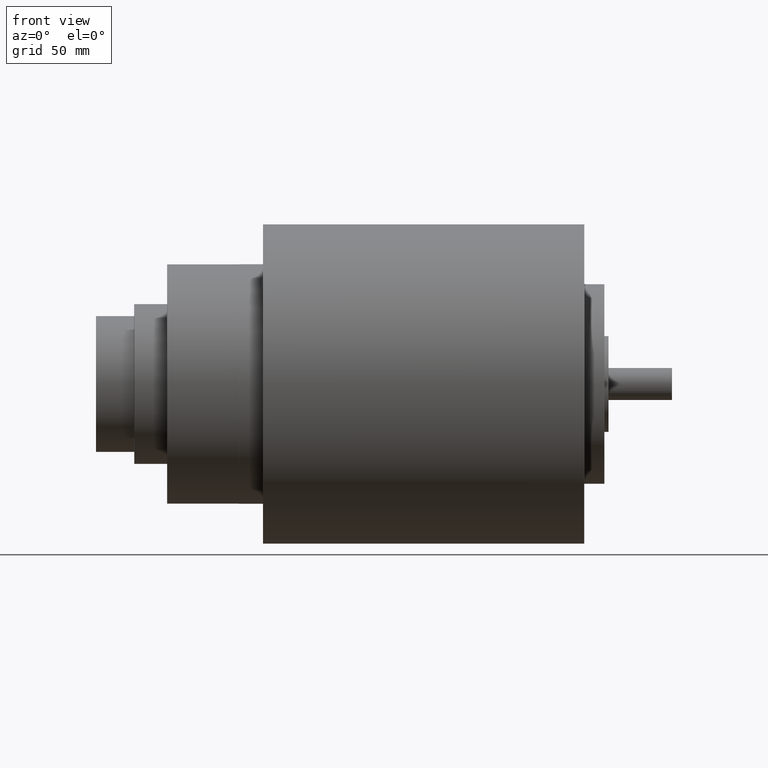
[diagram: clean part render]
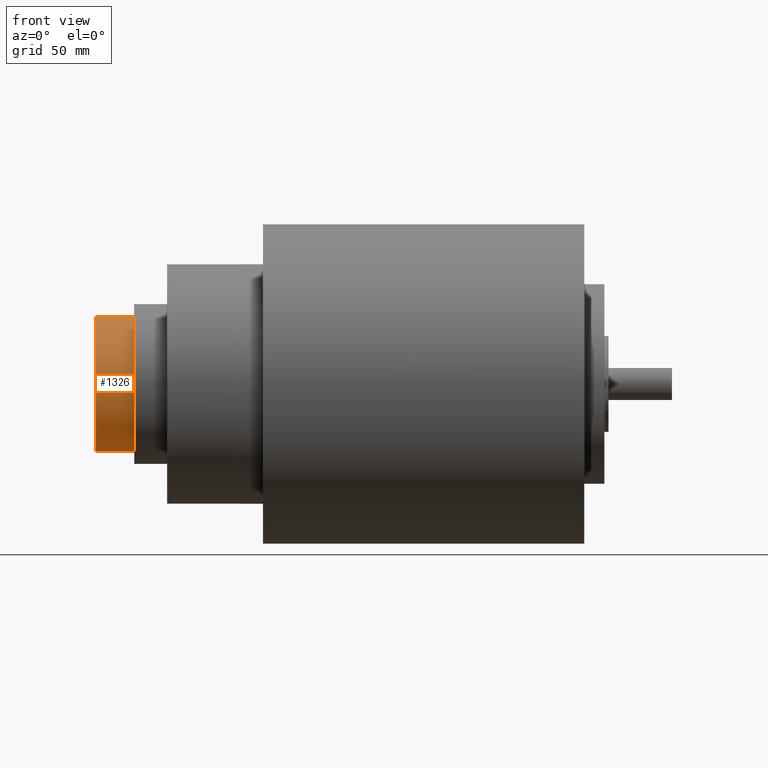
[diagram: same view with one face highlighted and labeled with its STEP entity id]
A machine part, front view. The second image highlights one B-rep face of the part: STEP entity #1326.
In plain terms, the highlighted cylindrical surface (partial cylindrical patch) has radius 53.975 mm, axis along (-1, -0, -0).
Its self-contained STEP definition (entity closure, byte-faithful):
#191 = FACE_OUTER_BOUND ( 'NONE', #560, .T. ) ;
#196 = CYLINDRICAL_SURFACE ( 'NONE', #2635, 2.125000000000000000 ) ;
#560 = EDGE_LOOP ( 'NONE', ( #1469, #1470, #1471, #1472 ) ) ;
#621 = VERTEX_POINT ( 'NONE', #737 ) ;
#622 = VERTEX_POINT ( 'NONE', #741 ) ;
#655 = VERTEX_POINT ( 'NONE', #773 ) ;
#656 = VERTEX_POINT ( 'NONE', #774 ) ;
#737 = CARTESIAN_POINT ( 'NONE',  ( 1.196000000000000200, 2.602374448188124900E-016, -2.125000000000000000 ) ) ;
#741 = CARTESIAN_POINT ( 'NONE',  ( 1.196000000000000200, 0.0000000000000000000, 2.125000000000000000 ) ) ;
#773 = CARTESIAN_POINT ( 'NONE',  ( 0.004999999999999946300, 0.0000000000000000000, 2.125000000000000000 ) ) ;
#774 = CARTESIAN_POINT ( 'NONE',  ( 0.004999999999999946300, 2.602374448188124900E-016, -2.125000000000000000 ) ) ;
#971 = CARTESIAN_POINT ( 'NONE',  ( 0.004999999999999946300, 0.0000000000000000000, 0.0000000000000000000 ) ) ;
#972 = DIRECTION ( 'NONE',  ( 1.000000000000000000, 0.0000000000000000000, 0.0000000000000000000 ) ) ;
#973 = DIRECTION ( 'NONE',  ( 0.0000000000000000000, 0.0000000000000000000, -1.000000000000000000 ) ) ;
#1024 = EDGE_CURVE ( 'NONE', #655, #656, #1718, .T. ) ;
#1127 = EDGE_CURVE ( 'NONE', #621, #656, #1869, .T. ) ;
#1129 = EDGE_CURVE ( 'NONE', #622, #655, #1863, .T. ) ;
#1168 = EDGE_CURVE ( 'NONE', #621, #622, #1921, .T. ) ;
#1233 = AXIS2_PLACEMENT_3D ( 'NONE', #971, #972, #973 ) ;
#1326 = ADVANCED_FACE ( 'NONE', ( #191 ), #196, .T. ) ;
#1469 = ORIENTED_EDGE ( 'NONE', *, *, #1127, .F. ) ;
#1470 = ORIENTED_EDGE ( 'NONE', *, *, #1168, .T. ) ;
#1471 = ORIENTED_EDGE ( 'NONE', *, *, #1129, .T. ) ;
#1472 = ORIENTED_EDGE ( 'NONE', *, *, #1024, .T. ) ;
#1718 = CIRCLE ( 'NONE', #1233, 2.125000000000000000 ) ;
#1863 = LINE ( 'NONE', #2102, #1867 ) ;
#1867 = VECTOR ( 'NONE', #2103, 39.37007874015748100 ) ;
#1869 = LINE ( 'NONE', #2098, #1870 ) ;
#1870 = VECTOR ( 'NONE', #2099, 39.37007874015748100 ) ;
#1921 = CIRCLE ( 'NONE', #2559, 2.125000000000000000 ) ;
#2098 = CARTESIAN_POINT ( 'NONE',  ( 1.201000000000000100, 2.602374448188124900E-016, -2.125000000000000000 ) ) ;
#2099 = DIRECTION ( 'NONE',  ( -1.000000000000000000, -0.0000000000000000000, -0.0000000000000000000 ) ) ;
#2102 = CARTESIAN_POINT ( 'NONE',  ( 1.201000000000000100, 0.0000000000000000000, 2.125000000000000000 ) ) ;
#2103 = DIRECTION ( 'NONE',  ( -1.000000000000000000, -0.0000000000000000000, -0.0000000000000000000 ) ) ;
#2235 = CARTESIAN_POINT ( 'NONE',  ( 1.196000000000000200, 0.0000000000000000000, 0.0000000000000000000 ) ) ;
#2236 = DIRECTION ( 'NONE',  ( -1.000000000000000000, 0.0000000000000000000, 0.0000000000000000000 ) ) ;
#2237 = DIRECTION ( 'NONE',  ( 0.0000000000000000000, 0.0000000000000000000, 1.000000000000000000 ) ) ;
#2429 = CARTESIAN_POINT ( 'NONE',  ( 1.201000000000000100, 0.0000000000000000000, 0.0000000000000000000 ) ) ;
#2430 = DIRECTION ( 'NONE',  ( -1.000000000000000000, -0.0000000000000000000, -0.0000000000000000000 ) ) ;
#2433 = DIRECTION ( 'NONE',  ( 0.0000000000000000000, 0.0000000000000000000, 1.000000000000000000 ) ) ;
#2559 = AXIS2_PLACEMENT_3D ( 'NONE', #2235, #2236, #2237 ) ;
#2635 = AXIS2_PLACEMENT_3D ( 'NONE', #2429, #2430, #2433 ) ;